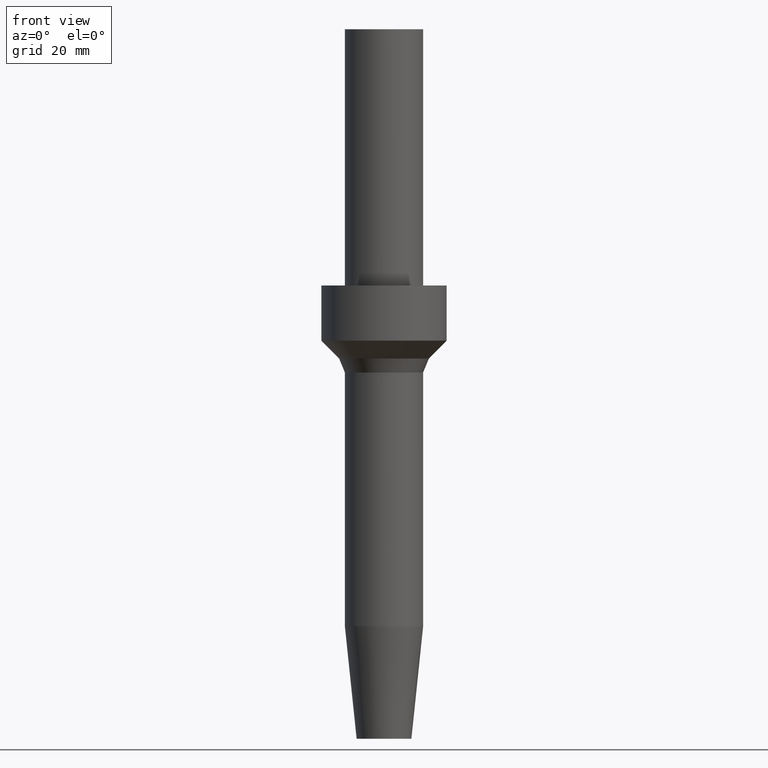
[diagram: clean part render]
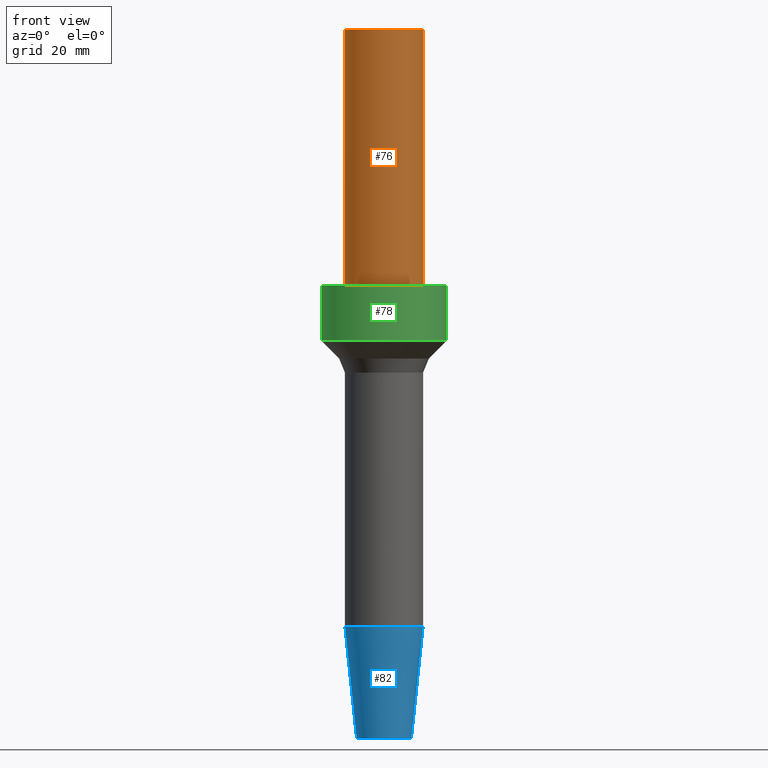
[diagram: same view with three faces highlighted in distinct colors, each labeled with its STEP entity id]
A machine part, front view with three faces highlighted in distinct colors.
Their STEP definitions:

[orange] entity #76 — the highlighted cylindrical surface (bore or boss wall) has radius 10 mm, axis along (-0, 0, 1).
#76=ADVANCED_FACE('',(#87,#88),#89,.T.);
#87=FACE_BOUND('',#112,.T.);
#88=FACE_BOUND('',#113,.T.);
#89=CYLINDRICAL_SURFACE('',#114,10.0000000004299);
#112=EDGE_LOOP('',(#139));
#113=EDGE_LOOP('',(#140));
#114=AXIS2_PLACEMENT_3D('',#141,#142,#143);
#139=ORIENTED_EDGE('',*,*,#179,.F.);
#140=ORIENTED_EDGE('',*,*,#178,.T.);
#141=CARTESIAN_POINT('',(-9.03177014371188E-015,1.64611849873018E-014,147.500000000002));
#142=DIRECTION('',(-6.12323399573677E-017,1.11601254151197E-016,1.0));
#143=DIRECTION('',(2.00645320308564E-033,1.0,-1.11601254151197E-016));
#178=EDGE_CURVE('',#186,#186,#187,.T.);
#179=EDGE_CURVE('',#188,#188,#189,.T.);
#186=VERTEX_POINT('',#202);
#187=CIRCLE('',#203,10.0000000004298);
#188=VERTEX_POINT('',#204);
#189=CIRCLE('',#205,10.0000000004299);
#202=CARTESIAN_POINT('',(-1.10218211923263E-014,10.0000000004298,180.000000000002));
#203=AXIS2_PLACEMENT_3D('',#218,#219,#220);
#204=CARTESIAN_POINT('',(-7.04171909509744E-015,10.0000000004299,115.000000000003));
#205=AXIS2_PLACEMENT_3D('',#221,#222,#223);
#218=CARTESIAN_POINT('',(-1.10218211923263E-014,2.00882257472157E-014,180.000000000002));
#219=DIRECTION('',(6.12323399573677E-017,-1.11601254151197E-016,-1.0));
#220=DIRECTION('',(2.00645320308564E-033,1.0,-1.11601254151197E-016));
#221=CARTESIAN_POINT('',(-7.04171909509744E-015,1.28341442273879E-014,115.000000000003));
#222=DIRECTION('',(6.12323399573677E-017,-1.11601254151197E-016,-1.0));
#223=DIRECTION('',(2.00645320308564E-033,1.0,-1.11601254151197E-016));

[blue] entity #82 — the highlighted conical surface has half-angle 6 deg.
#82=ADVANCED_FACE('',(#105,#106),#107,.T.);
#105=FACE_BOUND('',#130,.T.);
#106=FACE_BOUND('',#131,.T.);
#107=CONICAL_SURFACE('',#132,8.49999999999798,0.104719755119668);
#130=EDGE_LOOP('',(#169));
#131=EDGE_LOOP('',(#170));
#132=AXIS2_PLACEMENT_3D('',#171,#172,#173);
#169=ORIENTED_EDGE('',*,*,#185,.F.);
#170=ORIENTED_EDGE('',*,*,#184,.T.);
#171=CARTESIAN_POINT('',(-8.73880198110218E-016,1.59272250831667E-015,14.2715466813558));
#172=DIRECTION('',(-6.12323399573677E-017,1.11601254151197E-016,1.0));
#173=DIRECTION('',(2.00645320308564E-033,1.0,-1.11601254151197E-016));
#184=EDGE_CURVE('',#198,#198,#199,.T.);
#185=EDGE_CURVE('',#200,#200,#201,.T.);
#198=VERTEX_POINT('',#214);
#199=CIRCLE('',#215,10.0000000000004);
#200=VERTEX_POINT('',#216);
#201=CIRCLE('',#217,6.99999999999555);
#214=CARTESIAN_POINT('',(-1.74776039622044E-015,10.0000000000004,28.5430933627115));
#215=AXIS2_PLACEMENT_3D('',#236,#237,#238);
#216=CARTESIAN_POINT('',(0.0,6.99999999999555,0.0));
#217=AXIS2_PLACEMENT_3D('',#239,#240,#241);
#236=CARTESIAN_POINT('',(-1.74776039622044E-015,3.18544501663334E-015,28.5430933627115));
#237=DIRECTION('',(6.12323399573677E-017,-1.11601254151197E-016,-1.0));
#238=DIRECTION('',(2.00645320308564E-033,1.0,-1.11601254151197E-016));
#239=CARTESIAN_POINT('',(0.0,0.0,0.0));
#240=DIRECTION('',(6.12323399573677E-017,-1.11601254151197E-016,-1.0));
#241=DIRECTION('',(2.00645320308564E-033,1.0,-1.11601254151197E-016));

[green] entity #78 — the highlighted cylindrical surface (bore or boss wall) has radius 16 mm, axis along (-0, 0, 1).
#78=ADVANCED_FACE('',(#93,#94),#95,.T.);
#93=FACE_BOUND('',#118,.T.);
#94=FACE_BOUND('',#119,.T.);
#95=CYLINDRICAL_SURFACE('',#120,16.0000000000006);
#118=EDGE_LOOP('',(#149));
#119=EDGE_LOOP('',(#150));
#120=AXIS2_PLACEMENT_3D('',#151,#152,#153);
#149=ORIENTED_EDGE('',*,*,#181,.F.);
#150=ORIENTED_EDGE('',*,*,#180,.T.);
#151=CARTESIAN_POINT('',(-6.61309271539592E-015,1.20529354483297E-014,108.000000000003));
#152=DIRECTION('',(-6.12323399573677E-017,1.11601254151197E-016,1.0));
#153=DIRECTION('',(2.00645320308564E-033,1.0,-1.11601254151197E-016));
#180=EDGE_CURVE('',#190,#190,#191,.T.);
#181=EDGE_CURVE('',#192,#192,#193,.T.);
#190=VERTEX_POINT('',#206);
#191=CIRCLE('',#207,16.0000000000008);
#192=VERTEX_POINT('',#208);
#193=CIRCLE('',#209,16.0000000000005);
#206=CARTESIAN_POINT('',(-7.04171909509748E-015,16.0000000000008,115.000000000003));
#207=AXIS2_PLACEMENT_3D('',#224,#225,#226);
#208=CARTESIAN_POINT('',(-6.18446633569435E-015,16.0000000000005,101.000000000004));
#209=AXIS2_PLACEMENT_3D('',#227,#228,#229);
#224=CARTESIAN_POINT('',(-7.04171909509748E-015,1.2834144227388E-014,115.000000000003));
#225=DIRECTION('',(6.12323399573676E-017,-1.11601254151197E-016,-1.0));
#226=DIRECTION('',(2.00645320308564E-033,1.0,-1.11601254151197E-016));
#227=CARTESIAN_POINT('',(-6.18446633569435E-015,1.12717266692713E-014,101.000000000004));
#228=DIRECTION('',(6.12323399573677E-017,-1.11601254151197E-016,-1.0));
#229=DIRECTION('',(2.00645320308564E-033,1.0,-1.11601254151197E-016));